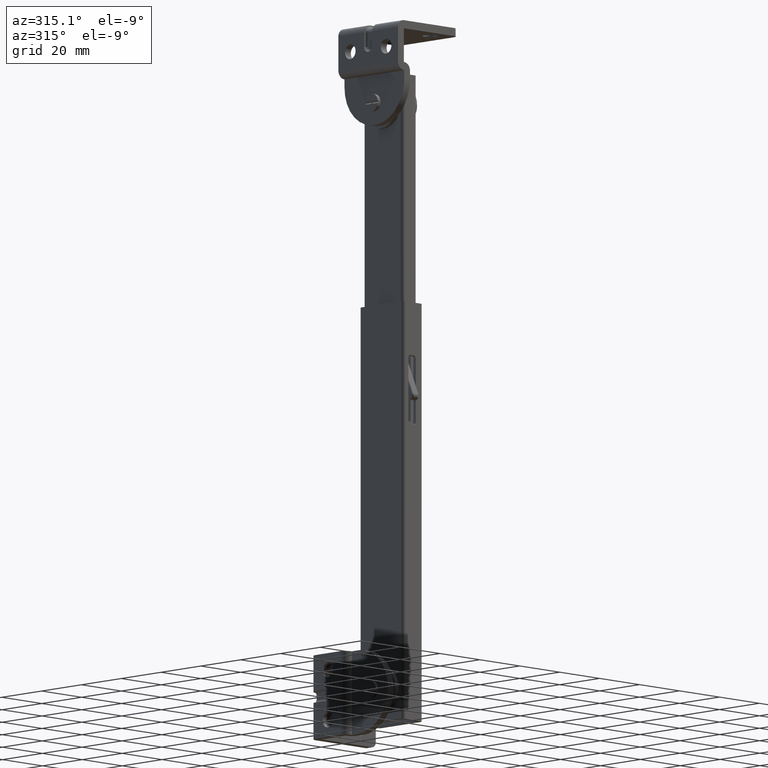
[diagram: clean part render]
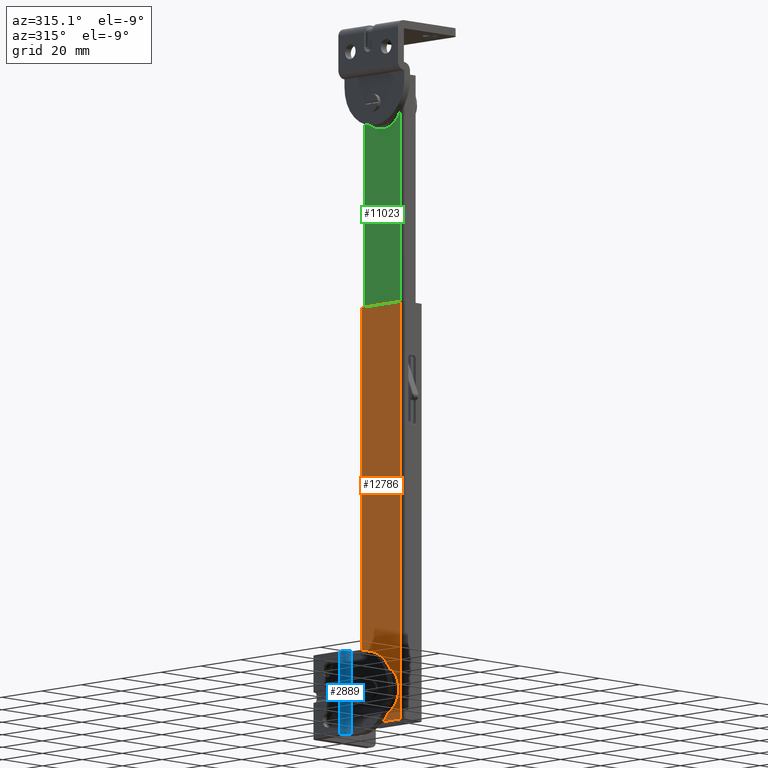
[diagram: same view with three faces highlighted in distinct colors, each labeled with its STEP entity id]
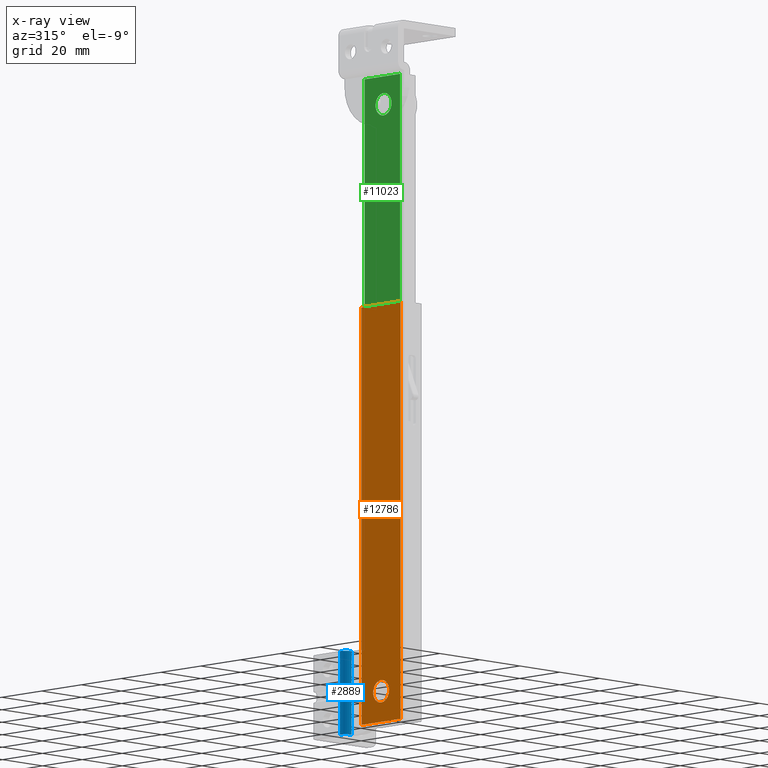
[diagram: x-ray of the same camera — body ghosted, the three highlighted faces saturated]
A machine part, auxiliary view with three faces highlighted in distinct colors.
The next image is the same camera in x-ray (body ghosted, the three faces saturated) — at least one of them is partly hidden behind the body in this view.
Their STEP definitions:

[orange] entity #12786 — the highlighted face is a freeform B-spline surface patch.
#11206=CARTESIAN_POINT('',(-10.0,-3.987669334732080,0.313836385458106));
#11207=VERTEX_POINT('',#11206);
#11213=CARTESIAN_POINT('',(-10.0,0.0,4.0));
#11214=VERTEX_POINT('',#11213);
#11215=CARTESIAN_POINT('',(-10.0,0.0,4.0));
#11216=CARTESIAN_POINT('',(-10.000000000000002,-3.697561961895326,4.0));
#11217=CARTESIAN_POINT('',(-10.000000000000002,-3.987669334732080,0.313836385458106));
#11225=(BOUNDED_CURVE()B_SPLINE_CURVE(2,(#11215,#11216,#11217),.UNSPECIFIED.,.F.,.U.)B_SPLINE_CURVE_WITH_KNOTS((3,3),(0.0,0.236331300413806),.UNSPECIFIED.)CURVE()GEOMETRIC_REPRESENTATION_ITEM()RATIONAL_B_SPLINE_CURVE((1.0,0.723120658861725,0.969723355714861))REPRESENTATION_ITEM(''));
#11226=EDGE_CURVE('',#11214,#11207,#11225,.T.);
#11228=CARTESIAN_POINT('',(-10.0,3.987669334732080,-0.313836385458105));
#11229=VERTEX_POINT('',#11228);
#11230=CARTESIAN_POINT('',(-10.000000000000002,3.987669334732080,-0.313836385458105));
#11231=CARTESIAN_POINT('',(-10.000000000000002,4.000000000000001,-0.157160430589221));
#11232=CARTESIAN_POINT('',(-10.0,4.0,0.0));
#11233=CARTESIAN_POINT('',(-10.000000000000002,4.000000000000000,4.000000000000000));
#11234=CARTESIAN_POINT('',(-10.0,0.0,4.0));
#11242=(BOUNDED_CURVE()B_SPLINE_CURVE(2,(#11230,#11231,#11232,#11233,#11234),.UNSPECIFIED.,.F.,.U.)B_SPLINE_CURVE_WITH_KNOTS((3,2,3),(0.736331300413806,0.750000000000000,1.0),.UNSPECIFIED.)CURVE()GEOMETRIC_REPRESENTATION_ITEM()RATIONAL_B_SPLINE_CURVE((0.969723355714862,0.983986122324823,1.0,0.707106781186548,1.0))REPRESENTATION_ITEM(''));
#11243=EDGE_CURVE('',#11229,#11214,#11242,.T.);
#11319=CARTESIAN_POINT('',(-10.0,0.0,-4.0));
#11320=VERTEX_POINT('',#11319);
#11321=CARTESIAN_POINT('',(-10.0,0.0,-4.0));
#11322=CARTESIAN_POINT('',(-10.0,3.697561961895313,-4.000000000000000));
#11323=CARTESIAN_POINT('',(-10.0,3.987669334732079,-0.313836385458105));
#11331=(BOUNDED_CURVE()B_SPLINE_CURVE(2,(#11321,#11322,#11323),.UNSPECIFIED.,.F.,.U.)B_SPLINE_CURVE_WITH_KNOTS((3,3),(0.500000000000000,0.736331300413806),.UNSPECIFIED.)CURVE()GEOMETRIC_REPRESENTATION_ITEM()RATIONAL_B_SPLINE_CURVE((1.0,0.723120658861726,0.969723355714860))REPRESENTATION_ITEM(''));
#11332=EDGE_CURVE('',#11320,#11229,#11331,.T.);
#11334=CARTESIAN_POINT('',(-10.000000000000002,-3.987669334732080,0.313836385458106));
#11335=CARTESIAN_POINT('',(-10.000000000000002,-4.0,0.157160430589222));
#11336=CARTESIAN_POINT('',(-10.0,-4.0,0.0));
#11337=CARTESIAN_POINT('',(-10.000000000000002,-4.000000000000000,-4.000000000000000));
#11338=CARTESIAN_POINT('',(-10.0,0.0,-4.0));
#11346=(BOUNDED_CURVE()B_SPLINE_CURVE(2,(#11334,#11335,#11336,#11337,#11338),.UNSPECIFIED.,.F.,.U.)B_SPLINE_CURVE_WITH_KNOTS((3,2,3),(0.236331300413806,0.250000000000000,0.500000000000000),.UNSPECIFIED.)CURVE()GEOMETRIC_REPRESENTATION_ITEM()RATIONAL_B_SPLINE_CURVE((0.969723355714862,0.983986122324823,1.0,0.707106781186548,1.0))REPRESENTATION_ITEM(''));
#11347=EDGE_CURVE('',#11207,#11320,#11346,.T.);
#12297=CARTESIAN_POINT('',(-10.0,9.802682279935349,139.0));
#12298=VERTEX_POINT('',#12297);
#12312=CARTESIAN_POINT('',(-10.0,-9.802686279935349,139.0));
#12313=VERTEX_POINT('',#12312);
#12314=CARTESIAN_POINT('',(-10.0,-9.802686279935349,139.0));
#12315=CARTESIAN_POINT('',(-10.0,9.802682279935349,139.0));
#12316=QUASI_UNIFORM_CURVE('',1,(#12314,#12315),.UNSPECIFIED.,.F.,.U.);
#12317=EDGE_CURVE('',#12313,#12298,#12316,.T.);
#12379=CARTESIAN_POINT('',(-10.0,-9.802686279935349,-11.0));
#12380=VERTEX_POINT('',#12379);
#12394=CARTESIAN_POINT('',(-10.0,9.802682279935349,-11.0));
#12395=VERTEX_POINT('',#12394);
#12396=CARTESIAN_POINT('',(-10.0,-9.802686279935349,-11.0));
#12397=CARTESIAN_POINT('',(-10.0,9.802682279935349,-11.0));
#12398=QUASI_UNIFORM_CURVE('',1,(#12396,#12397),.UNSPECIFIED.,.F.,.U.);
#12399=EDGE_CURVE('',#12380,#12395,#12398,.T.);
#12570=CARTESIAN_POINT('',(-10.0,9.802682279935349,-11.0));
#12571=CARTESIAN_POINT('',(-10.0,9.802682279935349,139.0));
#12572=QUASI_UNIFORM_CURVE('',1,(#12570,#12571),.UNSPECIFIED.,.F.,.U.);
#12573=EDGE_CURVE('',#12395,#12298,#12572,.T.);
#12593=CARTESIAN_POINT('',(-10.0,-9.802686279935349,-11.0));
#12594=CARTESIAN_POINT('',(-10.0,-9.802686279935349,139.0));
#12595=QUASI_UNIFORM_CURVE('',1,(#12593,#12594),.UNSPECIFIED.,.F.,.U.);
#12596=EDGE_CURVE('',#12380,#12313,#12595,.T.);
#12769=CARTESIAN_POINT('',(-10.0,-10.781974883581251,146.492499709270900));
#12770=CARTESIAN_POINT('',(-10.0,-10.781974883581251,-18.492503732584421));
#12771=CARTESIAN_POINT('',(-10.0,10.781969481296020,146.492499709270900));
#12772=CARTESIAN_POINT('',(-10.0,10.781969481296020,-18.492503732584421));
#12773=B_SPLINE_SURFACE_WITH_KNOTS('',1,1,((#12769,#12771),(#12770,#12772)),.UNSPECIFIED.,.F.,.F.,.U.,(2,2),(2,2),(0.0,164.985003441855300),(0.0,21.563944364877269),.UNSPECIFIED.);
#12774=ORIENTED_EDGE('',*,*,#12317,.T.);
#12775=ORIENTED_EDGE('',*,*,#12573,.F.);
#12776=ORIENTED_EDGE('',*,*,#12399,.F.);
#12777=ORIENTED_EDGE('',*,*,#12596,.T.);
#12778=EDGE_LOOP('',(#12774,#12775,#12776,#12777));
#12779=FACE_OUTER_BOUND('',#12778,.T.);
#12780=ORIENTED_EDGE('',*,*,#11332,.T.);
#12781=ORIENTED_EDGE('',*,*,#11243,.T.);
#12782=ORIENTED_EDGE('',*,*,#11226,.T.);
#12783=ORIENTED_EDGE('',*,*,#11347,.T.);
#12784=EDGE_LOOP('',(#12780,#12781,#12782,#12783));
#12785=FACE_BOUND('',#12784,.T.);
#12786=ADVANCED_FACE('',(#12779,#12785),#12773,.F.);

[blue] entity #2889 — the highlighted face is a freeform B-spline surface patch.
#2539=CARTESIAN_POINT('',(-18.0,-15.0,323.005899149434010));
#2540=VERTEX_POINT('',#2539);
#2546=CARTESIAN_POINT('',(-15.094106850566000,-15.0,320.100006000000010));
#2547=VERTEX_POINT('',#2546);
#2548=CARTESIAN_POINT('',(-17.999999999999989,-15.0,323.005899149434010));
#2549=CARTESIAN_POINT('',(-18.002450540101997,-14.999999999999996,321.801225209219980));
#2550=CARTESIAN_POINT('',(-17.150615665440991,-15.0,320.949390334558980));
#2551=CARTESIAN_POINT('',(-16.298780790779979,-14.999999999999996,320.097555459898050));
#2552=CARTESIAN_POINT('',(-15.094106850566000,-15.0,320.100006000000010));
#2560=(BOUNDED_CURVE()B_SPLINE_CURVE(2,(#2548,#2549,#2550,#2551,#2552),.UNSPECIFIED.,.F.,.U.)B_SPLINE_CURVE_WITH_KNOTS((3,2,3),(0.0,0.500000000000000,1.0),.UNSPECIFIED.)CURVE()GEOMETRIC_REPRESENTATION_ITEM()RATIONAL_B_SPLINE_CURVE((1.0,0.923489829138799,1.0,0.923489829138799,1.0))REPRESENTATION_ITEM(''));
#2561=EDGE_CURVE('',#2540,#2547,#2560,.T.);
#2675=CARTESIAN_POINT('',(-15.094106850566000,15.0,320.100006000000010));
#2676=VERTEX_POINT('',#2675);
#2682=CARTESIAN_POINT('',(-18.0,15.0,323.005899149434010));
#2683=VERTEX_POINT('',#2682);
#2684=CARTESIAN_POINT('',(-17.999999999999989,15.0,323.005899149434010));
#2685=CARTESIAN_POINT('',(-18.002450540101997,14.999999999999996,321.801225209219980));
#2686=CARTESIAN_POINT('',(-17.150615665440991,15.0,320.949390334558980));
#2687=CARTESIAN_POINT('',(-16.298780790779979,14.999999999999996,320.097555459898050));
#2688=CARTESIAN_POINT('',(-15.094106850566000,15.0,320.100006000000010));
#2696=(BOUNDED_CURVE()B_SPLINE_CURVE(2,(#2684,#2685,#2686,#2687,#2688),.UNSPECIFIED.,.F.,.U.)B_SPLINE_CURVE_WITH_KNOTS((3,2,3),(0.0,0.500000000000000,1.0),.UNSPECIFIED.)CURVE()GEOMETRIC_REPRESENTATION_ITEM()RATIONAL_B_SPLINE_CURVE((1.0,0.923489829138799,1.0,0.923489829138799,1.0))REPRESENTATION_ITEM(''));
#2697=EDGE_CURVE('',#2683,#2676,#2696,.T.);
#2855=CARTESIAN_POINT('',(-15.094106850566000,15.0,320.100006000000010));
#2856=CARTESIAN_POINT('',(-15.094106850566000,-15.0,320.100006000000010));
#2857=QUASI_UNIFORM_CURVE('',1,(#2855,#2856),.UNSPECIFIED.,.F.,.U.);
#2858=EDGE_CURVE('',#2676,#2547,#2857,.T.);
#2865=CARTESIAN_POINT('',(-14.979403573107749,15.750000000000000,320.102508834417680));
#2866=CARTESIAN_POINT('',(-14.979403573107749,-15.768750000000001,320.102508834417680));
#2867=CARTESIAN_POINT('',(-18.227400506984804,15.750000000000000,319.967317287531390));
#2868=CARTESIAN_POINT('',(-18.227400506984804,-15.768749999999999,319.967317287531390));
#2869=CARTESIAN_POINT('',(-17.992419920343817,15.750000000000004,323.209622788363500));
#2870=CARTESIAN_POINT('',(-17.992419920343817,-15.768749999999997,323.209622788363500));
#2878=(BOUNDED_SURFACE()B_SPLINE_SURFACE(1,2,((#2865,#2867,#2869),(#2866,#2868,#2870)),.UNSPECIFIED.,.F.,.F.,.U.)B_SPLINE_SURFACE_WITH_KNOTS((2,2),(3,3),(0.0,31.518750000000001),(0.0,5.196739898625913),.UNSPECIFIED.)GEOMETRIC_REPRESENTATION_ITEM()RATIONAL_B_SPLINE_SURFACE(((1.0,0.664469671174879,0.996321034510788),(1.0,0.664469671174879,0.996321034510788)))REPRESENTATION_ITEM('')SURFACE());
#2879=ORIENTED_EDGE('',*,*,#2561,.F.);
#2880=CARTESIAN_POINT('',(-18.0,15.0,323.005899149434010));
#2881=CARTESIAN_POINT('',(-18.0,-15.0,323.005899149434010));
#2882=QUASI_UNIFORM_CURVE('',1,(#2880,#2881),.UNSPECIFIED.,.F.,.U.);
#2883=EDGE_CURVE('',#2683,#2540,#2882,.T.);
#2884=ORIENTED_EDGE('',*,*,#2883,.F.);
#2885=ORIENTED_EDGE('',*,*,#2697,.T.);
#2886=ORIENTED_EDGE('',*,*,#2858,.T.);
#2887=EDGE_LOOP('',(#2879,#2884,#2885,#2886));
#2888=FACE_OUTER_BOUND('',#2887,.T.);
#2889=ADVANCED_FACE('',(#2888),#2878,.T.);

[green] entity #11023 — the highlighted face is a freeform B-spline surface patch.
#9701=CARTESIAN_POINT('',(-8.800003000000000,3.969064855041456,210.503487989596810));
#9702=VERTEX_POINT('',#9701);
#9708=CARTESIAN_POINT('',(-8.800003000000000,-1.421085E-014,207.0));
#9709=VERTEX_POINT('',#9708);
#9710=CARTESIAN_POINT('',(-8.800003000000000,-1.421085E-014,207.0));
#9711=CARTESIAN_POINT('',(-8.800003000000000,3.530794396864419,207.0));
#9712=CARTESIAN_POINT('',(-8.800003000000000,3.969064855041455,210.503487989596830));
#9720=(BOUNDED_CURVE()B_SPLINE_CURVE(2,(#9710,#9711,#9712),.UNSPECIFIED.,.F.,.U.)B_SPLINE_CURVE_WITH_KNOTS((3,3),(0.500000000000000,0.728526070852209),.UNSPECIFIED.)CURVE()GEOMETRIC_REPRESENTATION_ITEM()RATIONAL_B_SPLINE_CURVE((1.0,0.732265054101222,0.954005429931055))REPRESENTATION_ITEM(''));
#9721=EDGE_CURVE('',#9709,#9702,#9720,.T.);
#9723=CARTESIAN_POINT('',(-8.800002999999999,-3.999847692236253,211.034906144336300));
#9724=VERTEX_POINT('',#9723);
#9725=CARTESIAN_POINT('',(-8.800002999999999,-3.999847692236254,211.034906144336330));
#9726=CARTESIAN_POINT('',(-8.800003000000000,-4.000000000000014,211.017453405625730));
#9727=CARTESIAN_POINT('',(-8.800003000000000,-4.000000000000014,211.0));
#9728=CARTESIAN_POINT('',(-8.800003000000000,-4.000000000000015,207.000000000000090));
#9729=CARTESIAN_POINT('',(-8.800003000000000,-1.421085E-014,207.0));
#9737=(BOUNDED_CURVE()B_SPLINE_CURVE(2,(#9725,#9726,#9727,#9728,#9729),.UNSPECIFIED.,.F.,.U.)B_SPLINE_CURVE_WITH_KNOTS((3,2,3),(0.248460105458671,0.250000000000000,0.500000000000000),.UNSPECIFIED.)CURVE()GEOMETRIC_REPRESENTATION_ITEM()RATIONAL_B_SPLINE_CURVE((0.996414027622872,0.998195901324627,1.0,0.707106781186548,1.0))REPRESENTATION_ITEM(''));
#9738=EDGE_CURVE('',#9724,#9709,#9737,.T.);
#9818=CARTESIAN_POINT('',(-8.800003000000000,-1.421085E-014,215.0));
#9819=VERTEX_POINT('',#9818);
#9820=CARTESIAN_POINT('',(-8.800003000000000,-1.421085E-014,215.0));
#9821=CARTESIAN_POINT('',(-8.800003000000000,-3.965244837734675,214.999999999999970));
#9822=CARTESIAN_POINT('',(-8.800002999999999,-3.999847692236253,211.034906144336250));
#9830=(BOUNDED_CURVE()B_SPLINE_CURVE(2,(#9820,#9821,#9822),.UNSPECIFIED.,.F.,.U.)B_SPLINE_CURVE_WITH_KNOTS((3,3),(0.0,0.248460105458671),.UNSPECIFIED.)CURVE()GEOMETRIC_REPRESENTATION_ITEM()RATIONAL_B_SPLINE_CURVE((1.0,0.708910879861920,0.996414027622873))REPRESENTATION_ITEM(''));
#9831=EDGE_CURVE('',#9819,#9724,#9830,.T.);
#9833=CARTESIAN_POINT('',(-8.800003000000000,3.969064855041455,210.503487989596780));
#9834=CARTESIAN_POINT('',(-8.800003000000000,3.999999999999987,210.750780287757690));
#9835=CARTESIAN_POINT('',(-8.800003000000000,3.999999999999986,211.0));
#9836=CARTESIAN_POINT('',(-8.800003000000000,3.999999999999987,214.999999999999940));
#9837=CARTESIAN_POINT('',(-8.800003000000000,-1.421085E-014,215.0));
#9845=(BOUNDED_CURVE()B_SPLINE_CURVE(2,(#9833,#9834,#9835,#9836,#9837),.UNSPECIFIED.,.F.,.U.)B_SPLINE_CURVE_WITH_KNOTS((3,2,3),(0.728526070852209,0.750000000000000,1.0),.UNSPECIFIED.)CURVE()GEOMETRIC_REPRESENTATION_ITEM()RATIONAL_B_SPLINE_CURVE((0.954005429931057,0.974841727085326,1.0,0.707106781186548,1.0))REPRESENTATION_ITEM(''));
#9846=EDGE_CURVE('',#9702,#9819,#9845,.T.);
#10090=CARTESIAN_POINT('',(-8.800003000000000,-3.277517647970107,111.377902916321600));
#10091=VERTEX_POINT('',#10090);
#10097=CARTESIAN_POINT('',(-8.800003000000000,-5.273787244531961,109.500000000000000));
#10098=VERTEX_POINT('',#10097);
#10099=CARTESIAN_POINT('',(-8.800003000000000,-5.273787244531961,109.500000000000000));
#10100=CARTESIAN_POINT('',(-8.800003000000000,-3.392375119423887,109.499999999999990));
#10101=CARTESIAN_POINT('',(-8.800003000000000,-3.277517647970108,111.377902916321560));
#10109=(BOUNDED_CURVE()B_SPLINE_CURVE(2,(#10099,#10100,#10101),.UNSPECIFIED.,.F.,.U.)B_SPLINE_CURVE_WITH_KNOTS((3,3),(0.500000000000000,0.739332961445264),.UNSPECIFIED.)CURVE()GEOMETRIC_REPRESENTATION_ITEM()RATIONAL_B_SPLINE_CURVE((1.0,0.719603994216562,0.976072039965714))REPRESENTATION_ITEM(''));
#10110=EDGE_CURVE('',#10098,#10091,#10109,.T.);
#10112=CARTESIAN_POINT('',(-8.800003000000000,-7.259806296630485,111.736068474603600));
#10113=VERTEX_POINT('',#10112);
#10114=CARTESIAN_POINT('',(-8.800003000000000,-7.259806296630485,111.736068474603660));
#10115=CARTESIAN_POINT('',(-8.800003000000000,-7.273787244531961,111.618448244649880));
#10116=CARTESIAN_POINT('',(-8.800003000000000,-7.273787244531961,111.500000000000000));
#10117=CARTESIAN_POINT('',(-8.800003000000000,-7.273787244531961,109.499999999999990));
#10118=CARTESIAN_POINT('',(-8.800003000000000,-5.273787244531961,109.500000000000000));
#10126=(BOUNDED_CURVE()B_SPLINE_CURVE(2,(#10114,#10115,#10116,#10117,#10118),.UNSPECIFIED.,.F.,.U.)B_SPLINE_CURVE_WITH_KNOTS((3,2,3),(0.229562472615307,0.250000000000000,0.500000000000000),.UNSPECIFIED.)CURVE()GEOMETRIC_REPRESENTATION_ITEM()RATIONAL_B_SPLINE_CURVE((0.956026752423187,0.976055947278836,1.0,0.707106781186548,1.0))REPRESENTATION_ITEM(''));
#10127=EDGE_CURVE('',#10113,#10098,#10126,.T.);
#10171=CARTESIAN_POINT('',(-8.800003000000000,-5.273787244531961,113.500000000000000));
#10172=VERTEX_POINT('',#10171);
#10173=CARTESIAN_POINT('',(-8.800003000000000,-5.273787244531961,113.500000000000000));
#10174=CARTESIAN_POINT('',(-8.800003000000000,-7.050136286904866,113.500000000000000));
#10175=CARTESIAN_POINT('',(-8.800003000000000,-7.259806296630485,111.736068474603630));
#10183=(BOUNDED_CURVE()B_SPLINE_CURVE(2,(#10173,#10174,#10175),.UNSPECIFIED.,.F.,.U.)B_SPLINE_CURVE_WITH_KNOTS((3,3),(0.0,0.229562472615307),.UNSPECIFIED.)CURVE()GEOMETRIC_REPRESENTATION_ITEM()RATIONAL_B_SPLINE_CURVE((1.0,0.731050833907711,0.956026752423187))REPRESENTATION_ITEM(''));
#10184=EDGE_CURVE('',#10172,#10113,#10183,.T.);
#10186=CARTESIAN_POINT('',(-8.800003000000000,-3.277517647970108,111.377902916321590));
#10187=CARTESIAN_POINT('',(-8.800003000000000,-3.273787244531961,111.438894468781210));
#10188=CARTESIAN_POINT('',(-8.800003000000000,-3.273787244531960,111.500000000000000));
#10189=CARTESIAN_POINT('',(-8.800003000000000,-3.273787244531960,113.500000000000000));
#10190=CARTESIAN_POINT('',(-8.800003000000000,-5.273787244531961,113.500000000000000));
#10198=(BOUNDED_CURVE()B_SPLINE_CURVE(2,(#10186,#10187,#10188,#10189,#10190),.UNSPECIFIED.,.F.,.U.)B_SPLINE_CURVE_WITH_KNOTS((3,2,3),(0.739332961445264,0.750000000000000,1.0),.UNSPECIFIED.)CURVE()GEOMETRIC_REPRESENTATION_ITEM()RATIONAL_B_SPLINE_CURVE((0.976072039965713,0.987502786969985,1.0,0.707106781186548,1.0))REPRESENTATION_ITEM(''));
#10199=EDGE_CURVE('',#10091,#10172,#10198,.T.);
#10411=CARTESIAN_POINT('',(-8.800003000000000,-7.900000000000000,96.500000000000000));
#10412=VERTEX_POINT('',#10411);
#10413=CARTESIAN_POINT('',(-8.800003000000000,-8.300000000000001,96.500000000000000));
#10414=VERTEX_POINT('',#10413);
#10415=CARTESIAN_POINT('',(-8.800003000000000,-7.900000000000000,96.500000000000000));
#10416=CARTESIAN_POINT('',(-8.800003000000000,-8.300000000000001,96.500000000000000));
#10417=QUASI_UNIFORM_CURVE('',1,(#10415,#10416),.UNSPECIFIED.,.F.,.U.);
#10418=EDGE_CURVE('',#10412,#10414,#10417,.T.);
#10493=CARTESIAN_POINT('',(-8.800003000000000,-8.300000000000001,124.500000000000000));
#10494=VERTEX_POINT('',#10493);
#10495=CARTESIAN_POINT('',(-8.800003000000000,-7.900000000000000,124.500000000000000));
#10496=VERTEX_POINT('',#10495);
#10497=CARTESIAN_POINT('',(-8.800003000000000,-8.300000000000001,124.500000000000000));
#10498=CARTESIAN_POINT('',(-8.800003000000000,-7.900000000000000,124.500000000000000));
#10499=QUASI_UNIFORM_CURVE('',1,(#10497,#10498),.UNSPECIFIED.,.F.,.U.);
#10500=EDGE_CURVE('',#10494,#10496,#10499,.T.);
#10602=CARTESIAN_POINT('',(-8.800003000000000,-7.900000000000000,124.500000000000000));
#10603=CARTESIAN_POINT('',(-8.800003000000000,-7.900000000000000,96.500000000000000));
#10604=QUASI_UNIFORM_CURVE('',1,(#10602,#10603),.UNSPECIFIED.,.F.,.U.);
#10605=EDGE_CURVE('',#10496,#10412,#10604,.T.);
#10670=CARTESIAN_POINT('',(-8.800003000000000,-8.300000000000001,71.0));
#10671=VERTEX_POINT('',#10670);
#10672=CARTESIAN_POINT('',(-8.800003000000000,-8.300000000000001,71.0));
#10673=CARTESIAN_POINT('',(-8.800003000000000,-8.300000000000001,96.500000000000000));
#10674=QUASI_UNIFORM_CURVE('',1,(#10672,#10673),.UNSPECIFIED.,.F.,.U.);
#10675=EDGE_CURVE('',#10671,#10414,#10674,.T.);
#10753=CARTESIAN_POINT('',(-8.800003000000000,9.500000000000000,71.0));
#10754=VERTEX_POINT('',#10753);
#10755=CARTESIAN_POINT('',(-8.800003000000000,9.500000000000000,71.0));
#10756=CARTESIAN_POINT('',(-8.800003000000000,-8.300000000000001,71.0));
#10757=QUASI_UNIFORM_CURVE('',1,(#10755,#10756),.UNSPECIFIED.,.F.,.U.);
#10758=EDGE_CURVE('',#10754,#10671,#10757,.T.);
#10831=CARTESIAN_POINT('',(-8.800003000000000,9.500000000000000,221.0));
#10832=VERTEX_POINT('',#10831);
#10844=CARTESIAN_POINT('',(-8.800003000000000,9.500000000000000,221.0));
#10845=CARTESIAN_POINT('',(-8.800003000000000,9.500000000000000,71.0));
#10846=QUASI_UNIFORM_CURVE('',1,(#10844,#10845),.UNSPECIFIED.,.F.,.U.);
#10847=EDGE_CURVE('',#10832,#10754,#10846,.T.);
#10857=CARTESIAN_POINT('',(-8.800003000000000,-8.300000000000001,221.0));
#10858=VERTEX_POINT('',#10857);
#10859=CARTESIAN_POINT('',(-8.800003000000000,-8.300000000000001,221.0));
#10860=CARTESIAN_POINT('',(-8.800003000000000,9.500000000000000,221.0));
#10861=QUASI_UNIFORM_CURVE('',1,(#10859,#10860),.UNSPECIFIED.,.F.,.U.);
#10862=EDGE_CURVE('',#10858,#10832,#10861,.T.);
#10992=CARTESIAN_POINT('',(-8.800003000000000,-9.189110299687474,228.492499709270900));
#10993=CARTESIAN_POINT('',(-8.800003000000000,10.389110458831871,228.492499709270900));
#10994=CARTESIAN_POINT('',(-8.800003000000000,-9.189110299687474,63.507496267415569));
#10995=CARTESIAN_POINT('',(-8.800003000000000,10.389110458831871,63.507496267415569));
#10996=B_SPLINE_SURFACE_WITH_KNOTS('',1,1,((#10992,#10994),(#10993,#10995)),.UNSPECIFIED.,.F.,.F.,.U.,(2,2),(2,2),(0.0,19.578220758519350),(0.0,164.985003441855300),.UNSPECIFIED.);
#10997=ORIENTED_EDGE('',*,*,#10500,.F.);
#10998=CARTESIAN_POINT('',(-8.800003000000000,-8.300000000000001,124.500000000000000));
#10999=CARTESIAN_POINT('',(-8.800003000000000,-8.300000000000001,221.0));
#11000=QUASI_UNIFORM_CURVE('',1,(#10998,#10999),.UNSPECIFIED.,.F.,.U.);
#11001=EDGE_CURVE('',#10494,#10858,#11000,.T.);
#11002=ORIENTED_EDGE('',*,*,#11001,.T.);
#11003=ORIENTED_EDGE('',*,*,#10862,.T.);
#11004=ORIENTED_EDGE('',*,*,#10847,.T.);
#11005=ORIENTED_EDGE('',*,*,#10758,.T.);
#11006=ORIENTED_EDGE('',*,*,#10675,.T.);
#11007=ORIENTED_EDGE('',*,*,#10418,.F.);
#11008=ORIENTED_EDGE('',*,*,#10605,.F.);
#11009=EDGE_LOOP('',(#10997,#11002,#11003,#11004,#11005,#11006,#11007,#11008));
#11010=FACE_OUTER_BOUND('',#11009,.T.);
#11011=ORIENTED_EDGE('',*,*,#10110,.T.);
#11012=ORIENTED_EDGE('',*,*,#10199,.T.);
#11013=ORIENTED_EDGE('',*,*,#10184,.T.);
#11014=ORIENTED_EDGE('',*,*,#10127,.T.);
#11015=EDGE_LOOP('',(#11011,#11012,#11013,#11014));
#11016=FACE_BOUND('',#11015,.T.);
#11017=ORIENTED_EDGE('',*,*,#9831,.T.);
#11018=ORIENTED_EDGE('',*,*,#9738,.T.);
#11019=ORIENTED_EDGE('',*,*,#9721,.T.);
#11020=ORIENTED_EDGE('',*,*,#9846,.T.);
#11021=EDGE_LOOP('',(#11017,#11018,#11019,#11020));
#11022=FACE_BOUND('',#11021,.T.);
#11023=ADVANCED_FACE('',(#11010,#11016,#11022),#10996,.T.);